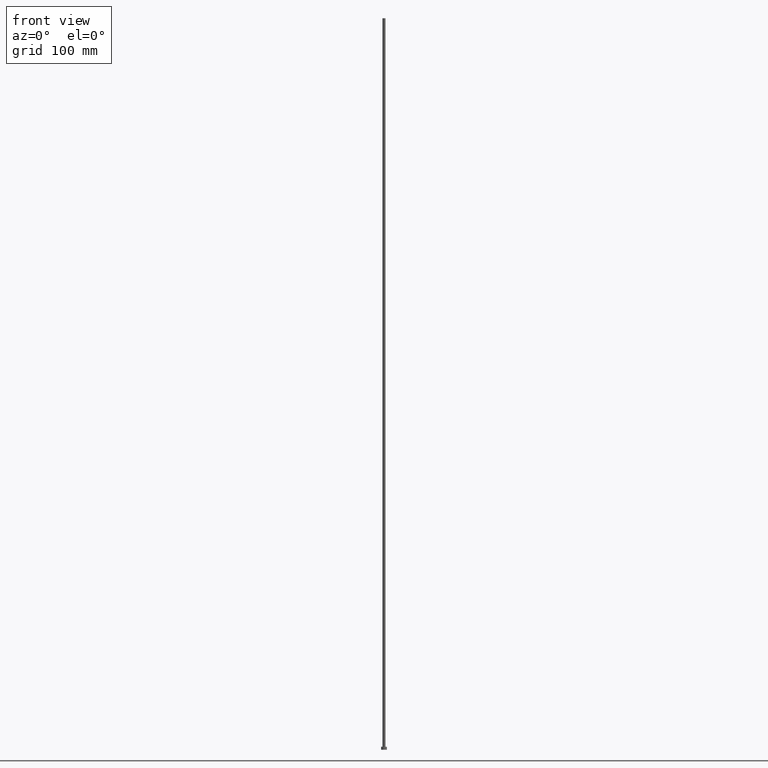
[diagram: clean part render]
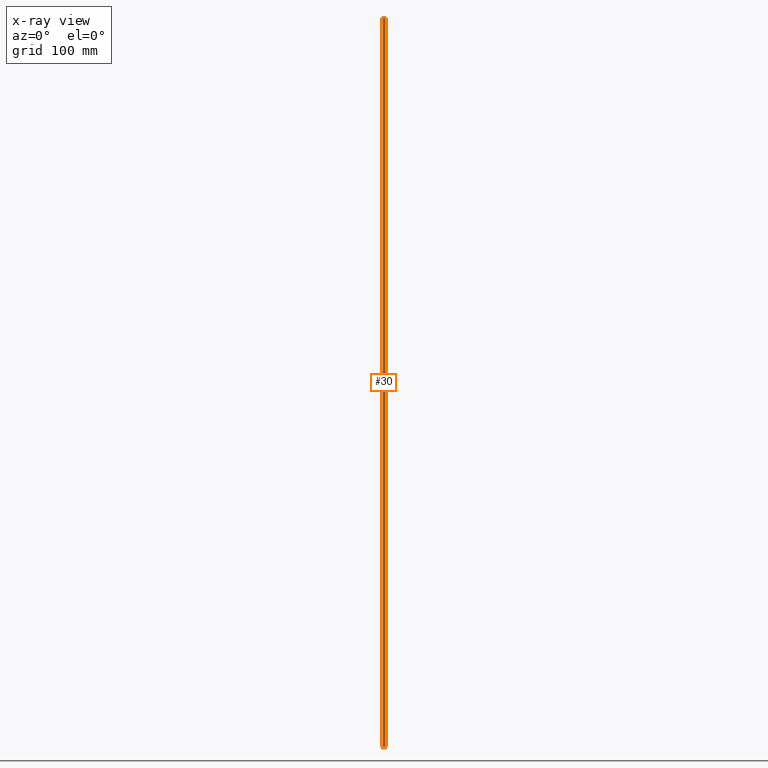
[diagram: x-ray — body ghosted, one internal face saturated and labeled with its STEP entity id]
A machine part, front view, then the same camera in x-ray: the body is ghosted and one INTERNAL B-rep face — a face not visible from any outside direction — is saturated and labeled: STEP entity #30.
In plain terms, the highlighted cylindrical surface (edge-blend (fillet) strip) has radius 2 mm, axis along (-0, -0, -1).
Its self-contained STEP definition (entity closure, byte-faithful):
#1 = VERTEX_POINT ( 'NONE', #195 ) ;
#4 = CYLINDRICAL_SURFACE ( 'NONE', #40, 2.000000000000000000 ) ;
#11 = DIRECTION ( 'NONE',  ( -0.000000000000000000, -0.000000000000000000, -1.000000000000000000 ) ) ;
#18 = ORIENTED_EDGE ( 'NONE', *, *, #196, .T. ) ;
#22 = AXIS2_PLACEMENT_3D ( 'NONE', #146, #107, #222 ) ;
#30 = ADVANCED_FACE ( 'NONE', ( #175 ), #4, .T. ) ;
#40 = AXIS2_PLACEMENT_3D ( 'NONE', #74, #159, #65 ) ;
#48 = CARTESIAN_POINT ( 'NONE',  ( -2.000000000000000000, 0.000000000000000000, 1000.000000000000000 ) ) ;
#49 = EDGE_CURVE ( 'NONE', #117, #157, #202, .T. ) ;
#54 = EDGE_CURVE ( 'NONE', #1, #157, #78, .T. ) ;
#56 = EDGE_CURVE ( 'NONE', #136, #117, #199, .T. ) ;
#65 = DIRECTION ( 'NONE',  ( -1.000000000000000000, 0.000000000000000000, 0.000000000000000000 ) ) ;
#74 = CARTESIAN_POINT ( 'NONE',  ( 0.000000000000000000, 0.000000000000000000, 1000.000000000000000 ) ) ;
#77 = CARTESIAN_POINT ( 'NONE',  ( 0.000000000000000000, 0.000000000000000000, 4.000000000000000000 ) ) ;
#78 = CIRCLE ( 'NONE', #173, 2.000000000000000000 ) ;
#88 = EDGE_LOOP ( 'NONE', ( #209, #18, #174, #140 ) ) ;
#107 = DIRECTION ( 'NONE',  ( 0.000000000000000000, 0.000000000000000000, 1.000000000000000000 ) ) ;
#117 = VERTEX_POINT ( 'NONE', #127 ) ;
#121 = DIRECTION ( 'NONE',  ( 1.000000000000000000, 0.000000000000000000, 0.000000000000000000 ) ) ;
#126 = VECTOR ( 'NONE', #11, 1000.000000000000000 ) ;
#127 = CARTESIAN_POINT ( 'NONE',  ( -2.000000000000000000, 0.000000000000000000, 1000.000000000000000 ) ) ;
#136 = VERTEX_POINT ( 'NONE', #163 ) ;
#140 = ORIENTED_EDGE ( 'NONE', *, *, #49, .F. ) ;
#146 = CARTESIAN_POINT ( 'NONE',  ( 0.000000000000000000, 0.000000000000000000, 1000.000000000000000 ) ) ;
#157 = VERTEX_POINT ( 'NONE', #244 ) ;
#159 = DIRECTION ( 'NONE',  ( -0.000000000000000000, -0.000000000000000000, -1.000000000000000000 ) ) ;
#163 = CARTESIAN_POINT ( 'NONE',  ( 2.000000000000000000, 2.449293598294706414E-16, 1000.000000000000000 ) ) ;
#173 = AXIS2_PLACEMENT_3D ( 'NONE', #77, #180, #121 ) ;
#174 = ORIENTED_EDGE ( 'NONE', *, *, #54, .T. ) ;
#175 = FACE_OUTER_BOUND ( 'NONE', #88, .T. ) ;
#180 = DIRECTION ( 'NONE',  ( 0.000000000000000000, 0.000000000000000000, 1.000000000000000000 ) ) ;
#183 = LINE ( 'NONE', #246, #234 ) ;
#195 = CARTESIAN_POINT ( 'NONE',  ( 2.000000000000000000, 2.449293598294706414E-16, 4.000000000000000000 ) ) ;
#196 = EDGE_CURVE ( 'NONE', #136, #1, #183, .T. ) ;
#199 = CIRCLE ( 'NONE', #22, 2.000000000000000000 ) ;
#202 = LINE ( 'NONE', #48, #126 ) ;
#203 = DIRECTION ( 'NONE',  ( -0.000000000000000000, -0.000000000000000000, -1.000000000000000000 ) ) ;
#209 = ORIENTED_EDGE ( 'NONE', *, *, #56, .F. ) ;
#222 = DIRECTION ( 'NONE',  ( 1.000000000000000000, 0.000000000000000000, 0.000000000000000000 ) ) ;
#234 = VECTOR ( 'NONE', #203, 1000.000000000000000 ) ;
#244 = CARTESIAN_POINT ( 'NONE',  ( -2.000000000000000000, 0.000000000000000000, 4.000000000000000000 ) ) ;
#246 = CARTESIAN_POINT ( 'NONE',  ( 2.000000000000000000, 2.449293598294706414E-16, 1000.000000000000000 ) ) ;